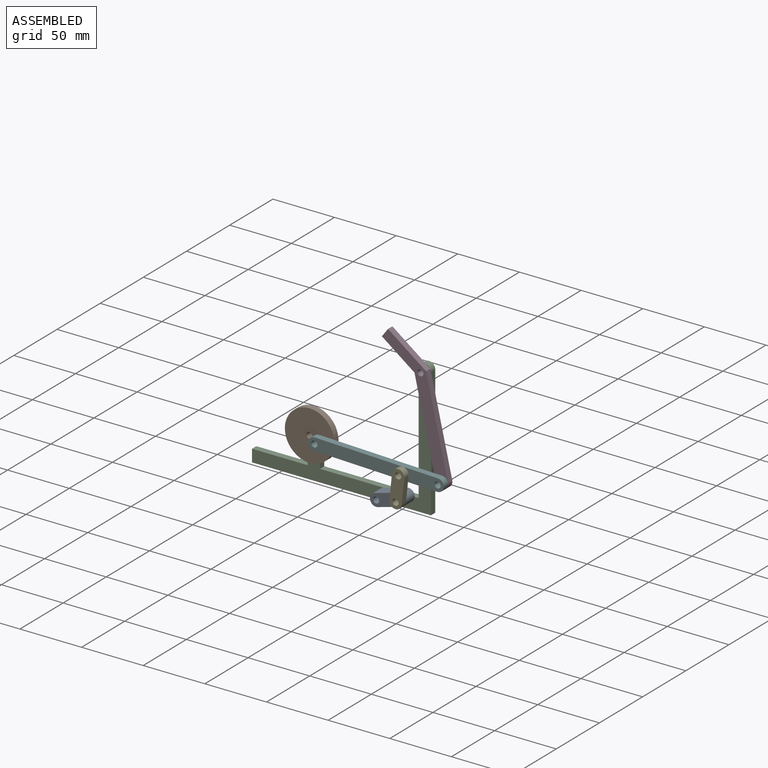
[diagram: assembled view]
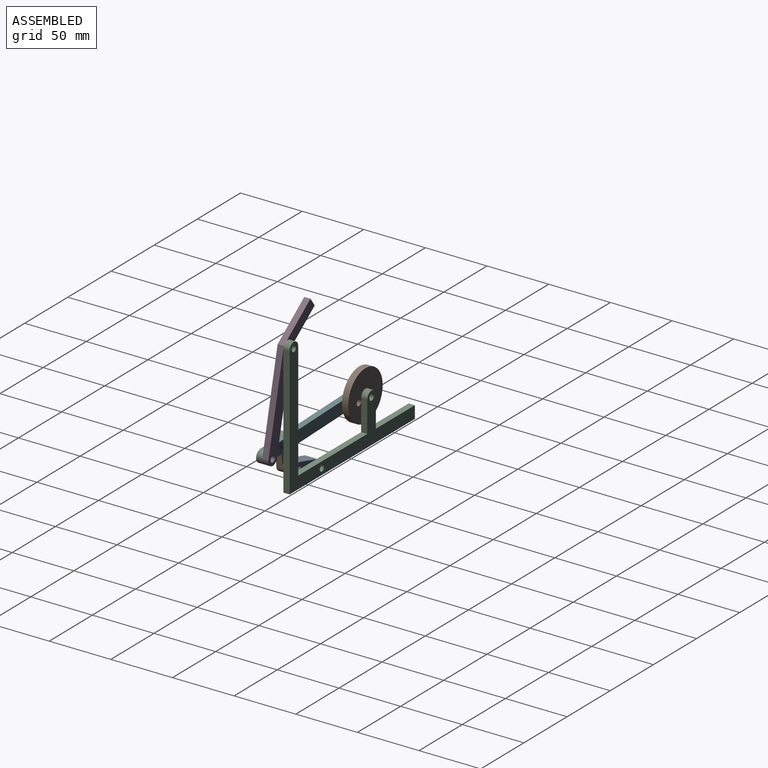
[diagram: assembled view, second angle]
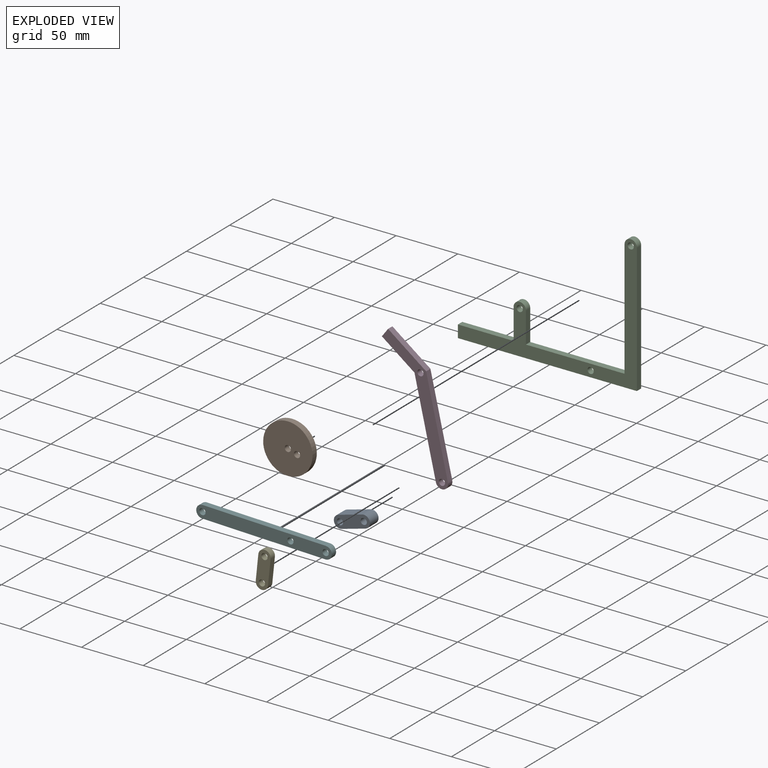
[diagram: exploded view]
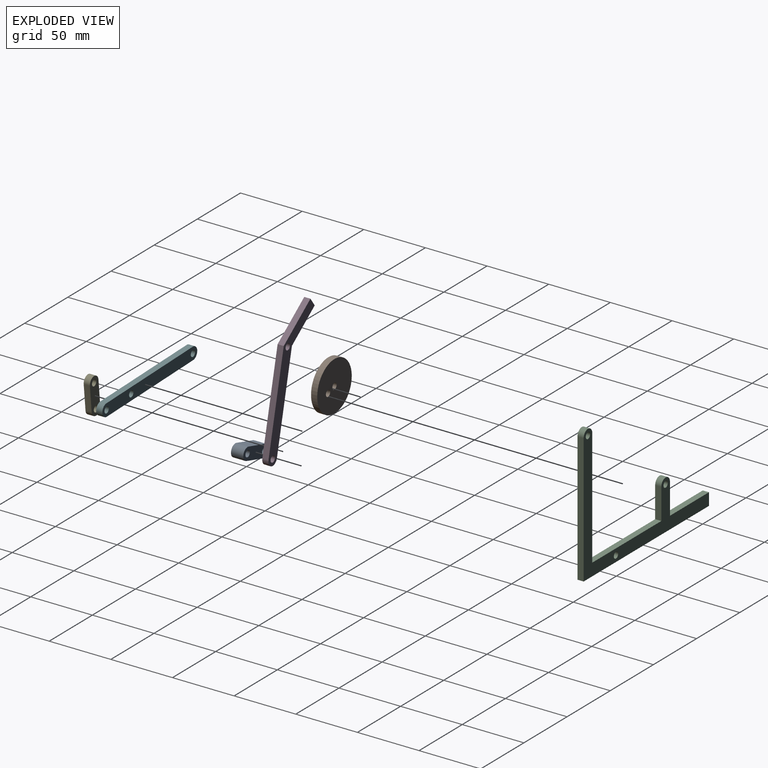
[diagram: exploded view, second angle]
ASSEMBLY  parts=6 mates=7
PART A: 8 faces, bbox 10x10x30 mm
  f0: plane 20x10mm, normal (1,0,0), area 200mm2, adj f1,f4,f6,f7
  f1: cylinder r=5mm len=10mm, axis (0,1,0), area 157.1mm2, adj f0,f2,f6,f7
  f2: plane 20x10mm, normal (-1,0,0), area 200mm2, adj f1,f4,f6,f7
  f3: cylinder r=2.5mm len=10mm, axis (0,1,0), area 157.1mm2, adj f6,f7
  f4: cylinder r=5mm len=10mm, axis (0,1,0), area 157.1mm2, adj f0,f2,f6,f7
  f5: cylinder r=2.5mm len=10mm, axis (0,1,0), area 157.1mm2, adj f6,f7
  f6: plane 30x10mm, normal (0,-1,0), area 239.3mm2, adj f0,f1,f2,f3,f4,f5
  f7: plane 30x10mm, normal (0,1,0), area 239.3mm2, adj f0,f1,f2,f3,f4,f5
PART B: 5 faces, bbox 40x5x40 mm
  f0: cylinder r=2.5mm len=5mm, axis (0,1,0), area 78.5mm2, adj f3,f4
  f1: cylinder r=2.5mm len=5mm, axis (0,1,0), area 78.5mm2, adj f3,f4
  f2: cylinder r=20mm len=40mm, axis (0,1,0), area 628.3mm2, adj f3,f4
  f3: plane 40x40mm, normal (0,-1,0), area 1217.4mm2, adj f0,f1,f2
  f4: plane 40x40mm, normal (0,1,0), area 1217.4mm2, adj f0,f1,f2
PART C: 15 faces, bbox 145.2x5x110 mm
  f0: plane 95x5mm, normal (-1,0,0), area 475mm2, adj f1,f12,f13,f14
  f1: plane 80x5mm, normal (0,0,1), area 400mm2, adj f0,f2,f13,f14
  f2: plane 25x5mm, normal (1,0,0), area 125mm2, adj f1,f3,f13,f14
  f3: cylinder r=5mm len=10mm, axis (0,1,0), area 78.5mm2, adj f2,f4,f13,f14
  f4: plane 25x5mm, normal (-1,0,0), area 125mm2, adj f3,f5,f13,f14
  f5: plane 45.15x5mm, normal (0,0,1), area 225.8mm2, adj f4,f6,f13,f14
  f6: plane 10x5mm, normal (-1,0,0), area 50mm2, adj f5,f7,f13,f14
  f7: plane 145.15x5mm, normal (0,0,-1), area 725.8mm2, adj f6,f8,f13,f14
  f8: plane 105x5mm, normal (1,0,0), area 525mm2, adj f7,f12,f13,f14
  f9: cylinder r=2.5mm len=5mm, axis (0,1,0), area 78.5mm2, adj f13,f14
  f10: cylinder r=2.5mm len=5mm, axis (0,1,0), area 78.5mm2, adj f13,f14
  f11: cylinder r=2.5mm len=5mm, axis (0,1,0), area 78.5mm2, adj f13,f14
  f12: cylinder r=5mm len=10mm, axis (0,1,0), area 78.5mm2, adj f0,f8,f13,f14
  f13: plane 145.15x110mm, normal (0,-1,0), area 2671.2mm2, adj f0,f1,f2,f3,f4,f5,f6,f7
  f14: plane 145.15x110mm, normal (0,1,0), area 2671.2mm2, adj f0,f1,f2,f3,f4,f5,f6,f7
PART D: 10 faces, bbox 57x5x104.3 mm
  f0: plane 31.69x21.77mm, normal (0.57,0,0.82), area 192.2mm2, adj f1,f6,f8,f9
  f1: plane 6.93x5mm, normal (-0.82,0,0.57), area 42.1mm2, adj f0,f2,f8,f9
  f2: plane 27.11x18.62mm, normal (-0.57,0,-0.82), area 164.5mm2, adj f1,f3,f8,f9
  f3: plane 75x20.1mm, normal (-0.97,0,-0.26), area 388.2mm2, adj f2,f4,f8,f9
  f4: cylinder r=5mm len=9.83mm, axis (0,1,0), area 78.5mm2, adj f3,f6,f8,f9
  f5: cylinder r=2.5mm len=5mm, axis (0,1,0), area 78.5mm2, adj f8,f9
  f6: plane 76.2x20.42mm, normal (0.97,0,0.26), area 394.4mm2, adj f0,f4,f8,f9
  f7: cylinder r=2.5mm len=5mm, axis (0,1,0), area 78.5mm2, adj f8,f9
  f8: plane 104.26x57.04mm, normal (0,-1,0), area 1082.7mm2, adj f0,f1,f2,f3,f4,f5,f6,f7
  f9: plane 104.26x57.04mm, normal (0,1,0), area 1082.7mm2, adj f0,f1,f2,f3,f4,f5,f6,f7
PART E: 8 faces, bbox 10x5x30 mm
  f0: plane 20x5mm, normal (1,0,0), area 100mm2, adj f1,f4,f6,f7
  f1: cylinder r=5mm len=10mm, axis (0,1,0), area 78.5mm2, adj f0,f2,f6,f7
  f2: plane 20x5mm, normal (-1,0,0), area 100mm2, adj f1,f4,f6,f7
  f3: cylinder r=2.5mm len=5mm, axis (0,1,0), area 78.5mm2, adj f6,f7
  f4: cylinder r=5mm len=10mm, axis (0,1,0), area 78.5mm2, adj f0,f2,f6,f7
  f5: cylinder r=2.5mm len=5mm, axis (0,1,0), area 78.5mm2, adj f6,f7
  f6: plane 30x10mm, normal (0,-1,0), area 239.3mm2, adj f0,f1,f2,f3,f4,f5
  f7: plane 30x10mm, normal (0,1,0), area 239.3mm2, adj f0,f1,f2,f3,f4,f5
PART F: 9 faces, bbox 110x5x10 mm
  f0: plane 100x5mm, normal (0,0,1), area 500mm2, adj f1,f6,f7,f8
  f1: cylinder r=5mm len=10mm, axis (0,1,0), area 78.5mm2, adj f0,f2,f7,f8
  f2: plane 100x5mm, normal (0,0,-1), area 500mm2, adj f1,f6,f7,f8
  f3: cylinder r=2.5mm len=5mm, axis (0,1,0), area 78.5mm2, adj f7,f8
  f4: cylinder r=2.5mm len=5mm, axis (0,1,0), area 78.5mm2, adj f7,f8
  f5: cylinder r=2.5mm len=5mm, axis (0,1,0), area 78.5mm2, adj f7,f8
  f6: cylinder r=5mm len=10mm, axis (0,1,0), area 78.5mm2, adj f0,f2,f7,f8
  f7: plane 110x10mm, normal (0,-1,0), area 1019.6mm2, adj f0,f1,f2,f3,f4,f5,f6
  f8: plane 110x10mm, normal (0,1,0), area 1019.6mm2, adj f0,f1,f2,f3,f4,f5,f6
PLACE A rot(axis=(0,1,0),74.4deg) t=(-62.41,-2.5,8.33)mm
PLACE B rot(axis=(0,1,0),18deg) t=(-119.91,-2.5,38.33)mm
PLACE C t=(-89.13,2.5,56.93)mm fixed
PLACE D rot(axis=(0,1,0),2.1deg) t=(-12.53,-2.5,32.66)mm
PLACE E rot(axis=(0,1,0),6deg) t=(-43.14,-12.5,13.7)mm
PLACE F rot(axis=(0,1,0),1.9deg) t=(-12.53,-7.5,32.66)mm
MATE revolute A.f3 <-> C.f11  axis (0,1,0) through (-62.41,-2.5,8.33)mm
MATE revolute E.f3 <-> A.f5  axis (0,1,0) through (-43.14,-12.5,13.7)mm
MATE revolute D.f5 <-> C.f9  axis (0,1,0) through (-29.91,-2.5,108.33)mm
MATE revolute E.f5 <-> F.f4  axis (0,1,0) through (-41.05,-12.5,33.59)mm
MATE revolute B.f2 <-> C.f3  axis (0,1,0) through (-119.91,-2.5,38.33)mm
MATE revolute F.f3 <-> B.f1  axis (0,1,0) through (-112.48,-7.5,35.91)mm
MATE revolute F.f6 <-> D.f7  axis (0,1,0) through (-12.53,-7.5,32.66)mm
